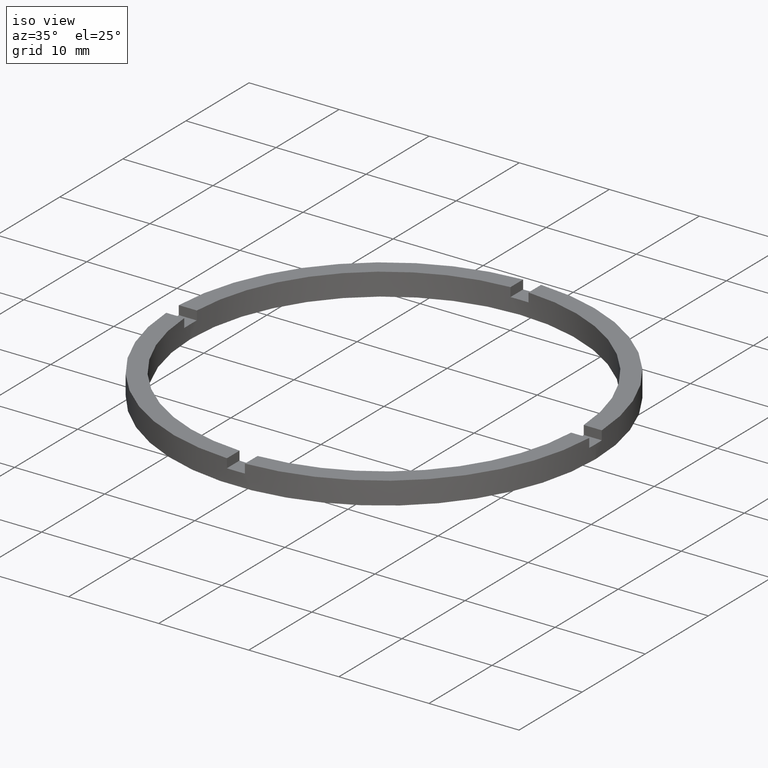
[diagram: clean part render]
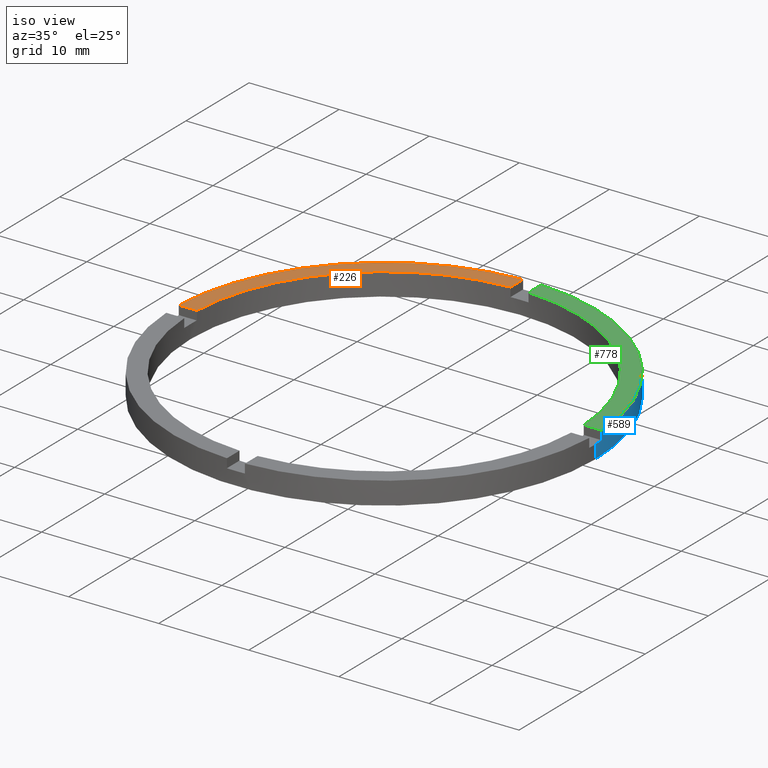
[diagram: same view with three faces highlighted in distinct colors, each labeled with its STEP entity id]
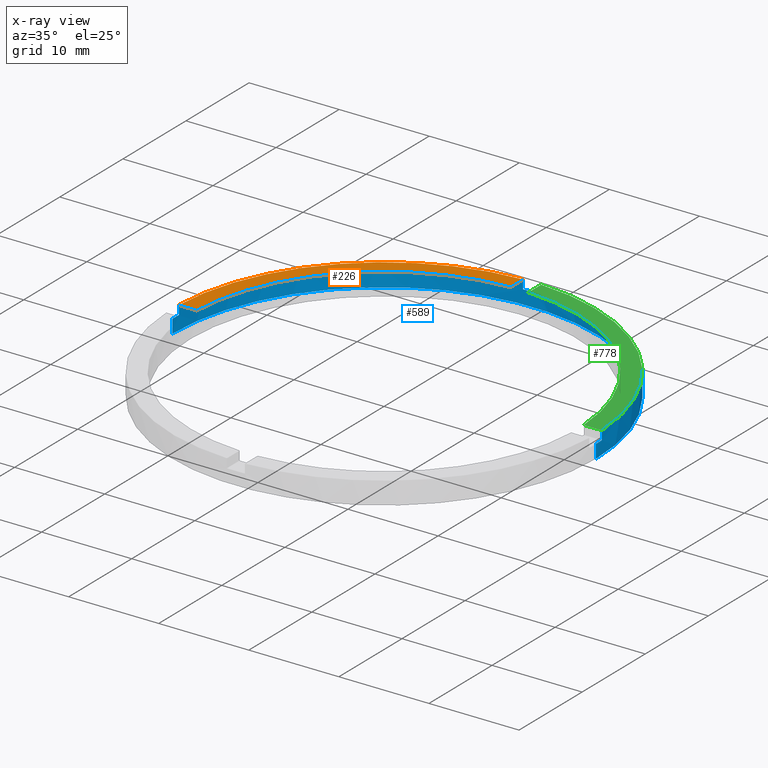
[diagram: x-ray of the same camera — body ghosted, the three highlighted faces saturated]
A machine part, iso view with three faces highlighted in distinct colors.
The next image is the same camera in x-ray (body ghosted, the three faces saturated) — at least one of them is partly hidden behind the body in this view.
Their STEP definitions:

[orange] entity #226 — the highlighted planar face has unit normal (0, 0, 1).
#3 = DIRECTION ( 'NONE',  ( 1.000000000000000000, 0.000000000000000000, 0.000000000000000000 ) ) ;
#32 = AXIS2_PLACEMENT_3D ( 'NONE', #646, #62, #603 ) ;
#45 = VERTEX_POINT ( 'NONE', #645 ) ;
#58 = AXIS2_PLACEMENT_3D ( 'NONE', #716, #376, #3 ) ;
#62 = DIRECTION ( 'NONE',  ( 0.000000000000000000, 0.000000000000000000, 1.000000000000000000 ) ) ;
#79 = CARTESIAN_POINT ( 'NONE',  ( -1.000000000000025535, 23.47871376374778762, 2.500000000000000000 ) ) ;
#94 = EDGE_CURVE ( 'NONE', #45, #548, #402, .T. ) ;
#110 = DIRECTION ( 'NONE',  ( 0.000000000000000000, 0.000000000000000000, 1.000000000000000000 ) ) ;
#163 = DIRECTION ( 'NONE',  ( -1.000000000000000000, -1.734723475976806848E-16, 0.000000000000000000 ) ) ;
#179 = FACE_OUTER_BOUND ( 'NONE', #767, .T. ) ;
#206 = CIRCLE ( 'NONE', #608, 21.50000000000000000 ) ;
#226 = ADVANCED_FACE ( 'NONE', ( #179 ), #231, .T. ) ;
#231 = PLANE ( 'NONE',  #32 ) ;
#242 = DIRECTION ( 'NONE',  ( 1.000000000000000000, 0.000000000000000000, 0.000000000000000000 ) ) ;
#252 = EDGE_CURVE ( 'NONE', #705, #548, #444, .T. ) ;
#259 = CARTESIAN_POINT ( 'NONE',  ( 0.000000000000000000, 0.000000000000000000, 2.500000000000000000 ) ) ;
#269 = ORIENTED_EDGE ( 'NONE', *, *, #770, .F. ) ;
#287 = EDGE_CURVE ( 'NONE', #705, #673, #435, .T. ) ;
#354 = CARTESIAN_POINT ( 'NONE',  ( -1.000000000000025979, 13.50000000000000355, 2.500000000000000000 ) ) ;
#376 = DIRECTION ( 'NONE',  ( 0.000000000000000000, 0.000000000000000000, 1.000000000000000000 ) ) ;
#402 = LINE ( 'NONE', #565, #674 ) ;
#405 = ORIENTED_EDGE ( 'NONE', *, *, #94, .F. ) ;
#435 = LINE ( 'NONE', #354, #451 ) ;
#444 = CIRCLE ( 'NONE', #58, 23.50000000000000355 ) ;
#451 = VECTOR ( 'NONE', #510, 1000.000000000000000 ) ;
#510 = DIRECTION ( 'NONE',  ( -0.000000000000000000, -1.000000000000000000, -0.000000000000000000 ) ) ;
#548 = VERTEX_POINT ( 'NONE', #640 ) ;
#565 = CARTESIAN_POINT ( 'NONE',  ( -13.50000000000018829, 0.9999999999999761302, 2.500000000000000000 ) ) ;
#603 = DIRECTION ( 'NONE',  ( 1.000000000000000000, 0.000000000000000000, -0.000000000000000000 ) ) ;
#608 = AXIS2_PLACEMENT_3D ( 'NONE', #259, #110, #242 ) ;
#640 = CARTESIAN_POINT ( 'NONE',  ( -23.47871376374779473, 0.9999999999999744649, 2.500000000000000000 ) ) ;
#645 = CARTESIAN_POINT ( 'NONE',  ( -21.47673159491452921, 0.9999999999999749090, 2.500000000000000000 ) ) ;
#646 = CARTESIAN_POINT ( 'NONE',  ( 0.000000000000000000, 0.000000000000000000, 2.500000000000000000 ) ) ;
#673 = VERTEX_POINT ( 'NONE', #720 ) ;
#674 = VECTOR ( 'NONE', #163, 1000.000000000000000 ) ;
#677 = ORIENTED_EDGE ( 'NONE', *, *, #287, .F. ) ;
#683 = ORIENTED_EDGE ( 'NONE', *, *, #252, .T. ) ;
#705 = VERTEX_POINT ( 'NONE', #79 ) ;
#716 = CARTESIAN_POINT ( 'NONE',  ( 0.000000000000000000, 0.000000000000000000, 2.500000000000000000 ) ) ;
#720 = CARTESIAN_POINT ( 'NONE',  ( -1.000000000000025535, 21.47673159491452211, 2.500000000000000000 ) ) ;
#767 = EDGE_LOOP ( 'NONE', ( #677, #683, #405, #269 ) ) ;
#770 = EDGE_CURVE ( 'NONE', #673, #45, #206, .T. ) ;

[blue] entity #589 — the highlighted cylindrical surface (partial cylindrical patch) has radius 23.5 mm, axis along (-0, -0, -1).
#1 = DIRECTION ( 'NONE',  ( 0.000000000000000000, 0.000000000000000000, 1.000000000000000000 ) ) ;
#3 = DIRECTION ( 'NONE',  ( 1.000000000000000000, 0.000000000000000000, 0.000000000000000000 ) ) ;
#5 = EDGE_CURVE ( 'NONE', #368, #486, #684, .T. ) ;
#30 = DIRECTION ( 'NONE',  ( 1.000000000000000000, 0.000000000000000000, 0.000000000000000000 ) ) ;
#31 = DIRECTION ( 'NONE',  ( 0.000000000000000000, 0.000000000000000000, 1.000000000000000000 ) ) ;
#33 = CARTESIAN_POINT ( 'NONE',  ( 23.47871376374779828, 0.9999999999998421263, 2.500000000000000000 ) ) ;
#53 = VERTEX_POINT ( 'NONE', #298 ) ;
#55 = CARTESIAN_POINT ( 'NONE',  ( -1.000000000000025535, 23.47871376374778762, 1.500000000000000000 ) ) ;
#57 = VERTEX_POINT ( 'NONE', #91 ) ;
#58 = AXIS2_PLACEMENT_3D ( 'NONE', #716, #376, #3 ) ;
#68 = CARTESIAN_POINT ( 'NONE',  ( -23.47871376374779473, 0.9999999999999744649, 2.500000000000000000 ) ) ;
#74 = EDGE_CURVE ( 'NONE', #560, #223, #701, .T. ) ;
#79 = CARTESIAN_POINT ( 'NONE',  ( -1.000000000000025535, 23.47871376374778762, 2.500000000000000000 ) ) ;
#85 = VERTEX_POINT ( 'NONE', #602 ) ;
#86 = DIRECTION ( 'NONE',  ( 1.000000000000000000, 0.000000000000000000, 0.000000000000000000 ) ) ;
#91 = CARTESIAN_POINT ( 'NONE',  ( -23.50000000000000355, 0.000000000000000000, 0.000000000000000000 ) ) ;
#95 = CARTESIAN_POINT ( 'NONE',  ( 23.50000000000000355, 2.877919977996280715E-15, 2.500000000000000000 ) ) ;
#105 = DIRECTION ( 'NONE',  ( 0.000000000000000000, 0.000000000000000000, 1.000000000000000000 ) ) ;
#111 = CARTESIAN_POINT ( 'NONE',  ( -23.50000000000000355, 0.000000000000000000, 1.500000000000000000 ) ) ;
#137 = CARTESIAN_POINT ( 'NONE',  ( 23.50000000000000355, 2.877919977996280715E-15, 0.000000000000000000 ) ) ;
#147 = EDGE_CURVE ( 'NONE', #705, #486, #189, .T. ) ;
#148 = ORIENTED_EDGE ( 'NONE', *, *, #74, .T. ) ;
#164 = ORIENTED_EDGE ( 'NONE', *, *, #703, .T. ) ;
#174 = VECTOR ( 'NONE', #568, 1000.000000000000000 ) ;
#185 = CIRCLE ( 'NONE', #523, 23.50000000000000355 ) ;
#187 = LINE ( 'NONE', #545, #446 ) ;
#189 = LINE ( 'NONE', #480, #479 ) ;
#219 = CIRCLE ( 'NONE', #641, 23.50000000000000355 ) ;
#223 = VERTEX_POINT ( 'NONE', #137 ) ;
#249 = DIRECTION ( 'NONE',  ( -0.000000000000000000, -0.000000000000000000, -1.000000000000000000 ) ) ;
#252 = EDGE_CURVE ( 'NONE', #705, #548, #444, .T. ) ;
#255 = AXIS2_PLACEMENT_3D ( 'NONE', #619, #576, #30 ) ;
#262 = ORIENTED_EDGE ( 'NONE', *, *, #606, .T. ) ;
#265 = ORIENTED_EDGE ( 'NONE', *, *, #5, .F. ) ;
#280 = EDGE_CURVE ( 'NONE', #625, #548, #454, .T. ) ;
#283 = AXIS2_PLACEMENT_3D ( 'NONE', #733, #622, #569 ) ;
#296 = AXIS2_PLACEMENT_3D ( 'NONE', #447, #702, #86 ) ;
#298 = CARTESIAN_POINT ( 'NONE',  ( 0.9999999999999735767, 23.47871376374779118, 2.500000000000000000 ) ) ;
#315 = CARTESIAN_POINT ( 'NONE',  ( 23.50000000000000355, 2.877919977996280715E-15, 1.500000000000000000 ) ) ;
#323 = LINE ( 'NONE', #33, #581 ) ;
#350 = DIRECTION ( 'NONE',  ( -0.000000000000000000, -0.000000000000000000, -1.000000000000000000 ) ) ;
#361 = EDGE_CURVE ( 'NONE', #668, #53, #735, .T. ) ;
#364 = CARTESIAN_POINT ( 'NONE',  ( 0.9999999999999735767, 23.47871376374779118, 1.500000000000000000 ) ) ;
#368 = VERTEX_POINT ( 'NONE', #364 ) ;
#375 = ORIENTED_EDGE ( 'NONE', *, *, #252, .F. ) ;
#376 = DIRECTION ( 'NONE',  ( 0.000000000000000000, 0.000000000000000000, 1.000000000000000000 ) ) ;
#377 = ORIENTED_EDGE ( 'NONE', *, *, #361, .F. ) ;
#390 = EDGE_LOOP ( 'NONE', ( #415, #148, #262, #706, #420, #530, #375, #682, #265, #427, #377, #164 ) ) ;
#406 = CARTESIAN_POINT ( 'NONE',  ( -23.50000000000000355, 0.000000000000000000, 2.500000000000000000 ) ) ;
#415 = ORIENTED_EDGE ( 'NONE', *, *, #614, .F. ) ;
#420 = ORIENTED_EDGE ( 'NONE', *, *, #453, .F. ) ;
#427 = ORIENTED_EDGE ( 'NONE', *, *, #521, .T. ) ;
#444 = CIRCLE ( 'NONE', #58, 23.50000000000000355 ) ;
#446 = VECTOR ( 'NONE', #31, 1000.000000000000000 ) ;
#447 = CARTESIAN_POINT ( 'NONE',  ( 0.000000000000000000, 0.000000000000000000, 2.500000000000000000 ) ) ;
#453 = EDGE_CURVE ( 'NONE', #625, #543, #185, .T. ) ;
#454 = LINE ( 'NONE', #68, #710 ) ;
#479 = VECTOR ( 'NONE', #598, 1000.000000000000000 ) ;
#480 = CARTESIAN_POINT ( 'NONE',  ( -1.000000000000025979, 23.47871376374779118, 2.500000000000000000 ) ) ;
#486 = VERTEX_POINT ( 'NONE', #55 ) ;
#487 = VECTOR ( 'NONE', #249, 1000.000000000000000 ) ;
#493 = CYLINDRICAL_SURFACE ( 'NONE', #283, 23.50000000000000355 ) ;
#496 = CIRCLE ( 'NONE', #566, 23.50000000000000355 ) ;
#499 = LINE ( 'NONE', #406, #487 ) ;
#509 = CARTESIAN_POINT ( 'NONE',  ( 0.000000000000000000, 0.000000000000000000, 0.000000000000000000 ) ) ;
#521 = EDGE_CURVE ( 'NONE', #368, #53, #187, .T. ) ;
#523 = AXIS2_PLACEMENT_3D ( 'NONE', #634, #689, #780 ) ;
#530 = ORIENTED_EDGE ( 'NONE', *, *, #280, .T. ) ;
#543 = VERTEX_POINT ( 'NONE', #111 ) ;
#545 = CARTESIAN_POINT ( 'NONE',  ( 0.9999999999999740208, 23.47871376374779473, 2.500000000000000000 ) ) ;
#548 = VERTEX_POINT ( 'NONE', #640 ) ;
#560 = VERTEX_POINT ( 'NONE', #315 ) ;
#566 = AXIS2_PLACEMENT_3D ( 'NONE', #699, #1, #659 ) ;
#568 = DIRECTION ( 'NONE',  ( -0.000000000000000000, -0.000000000000000000, -1.000000000000000000 ) ) ;
#569 = DIRECTION ( 'NONE',  ( -1.000000000000000000, 0.000000000000000000, 0.000000000000000000 ) ) ;
#572 = DIRECTION ( 'NONE',  ( 1.000000000000000000, 0.000000000000000000, 0.000000000000000000 ) ) ;
#576 = DIRECTION ( 'NONE',  ( 0.000000000000000000, -0.000000000000000000, 1.000000000000000000 ) ) ;
#581 = VECTOR ( 'NONE', #350, 1000.000000000000000 ) ;
#586 = EDGE_CURVE ( 'NONE', #543, #57, #499, .T. ) ;
#589 = ADVANCED_FACE ( 'NONE', ( #768 ), #493, .T. ) ;
#598 = DIRECTION ( 'NONE',  ( -0.000000000000000000, -0.000000000000000000, -1.000000000000000000 ) ) ;
#602 = CARTESIAN_POINT ( 'NONE',  ( 23.47871376374779828, 0.9999999999998421263, 1.500000000000000000 ) ) ;
#606 = EDGE_CURVE ( 'NONE', #223, #57, #219, .T. ) ;
#614 = EDGE_CURVE ( 'NONE', #560, #85, #496, .T. ) ;
#619 = CARTESIAN_POINT ( 'NONE',  ( 0.000000000000000000, 0.000000000000000000, 1.500000000000000000 ) ) ;
#620 = DIRECTION ( 'NONE',  ( 0.000000000000000000, 0.000000000000000000, 1.000000000000000000 ) ) ;
#622 = DIRECTION ( 'NONE',  ( -0.000000000000000000, -0.000000000000000000, -1.000000000000000000 ) ) ;
#625 = VERTEX_POINT ( 'NONE', #740 ) ;
#634 = CARTESIAN_POINT ( 'NONE',  ( 0.000000000000000000, 0.000000000000000000, 1.500000000000000000 ) ) ;
#640 = CARTESIAN_POINT ( 'NONE',  ( -23.47871376374779473, 0.9999999999999744649, 2.500000000000000000 ) ) ;
#641 = AXIS2_PLACEMENT_3D ( 'NONE', #509, #620, #572 ) ;
#647 = CARTESIAN_POINT ( 'NONE',  ( 23.47871376374779828, 0.9999999999998421263, 2.500000000000000000 ) ) ;
#659 = DIRECTION ( 'NONE',  ( 1.000000000000000000, 0.000000000000000000, 0.000000000000000000 ) ) ;
#668 = VERTEX_POINT ( 'NONE', #647 ) ;
#682 = ORIENTED_EDGE ( 'NONE', *, *, #147, .T. ) ;
#684 = CIRCLE ( 'NONE', #255, 23.50000000000000355 ) ;
#689 = DIRECTION ( 'NONE',  ( 0.000000000000000000, 0.000000000000000000, 1.000000000000000000 ) ) ;
#699 = CARTESIAN_POINT ( 'NONE',  ( 0.000000000000000000, 0.000000000000000000, 1.500000000000000000 ) ) ;
#701 = LINE ( 'NONE', #95, #174 ) ;
#702 = DIRECTION ( 'NONE',  ( 0.000000000000000000, 0.000000000000000000, 1.000000000000000000 ) ) ;
#703 = EDGE_CURVE ( 'NONE', #668, #85, #323, .T. ) ;
#705 = VERTEX_POINT ( 'NONE', #79 ) ;
#706 = ORIENTED_EDGE ( 'NONE', *, *, #586, .F. ) ;
#710 = VECTOR ( 'NONE', #105, 1000.000000000000000 ) ;
#716 = CARTESIAN_POINT ( 'NONE',  ( 0.000000000000000000, 0.000000000000000000, 2.500000000000000000 ) ) ;
#733 = CARTESIAN_POINT ( 'NONE',  ( 0.000000000000000000, 0.000000000000000000, 2.500000000000000000 ) ) ;
#735 = CIRCLE ( 'NONE', #296, 23.50000000000000355 ) ;
#740 = CARTESIAN_POINT ( 'NONE',  ( -23.47871376374779473, 0.9999999999999744649, 1.500000000000000000 ) ) ;
#768 = FACE_OUTER_BOUND ( 'NONE', #390, .T. ) ;
#780 = DIRECTION ( 'NONE',  ( 1.000000000000000000, 0.000000000000000000, 0.000000000000000000 ) ) ;

[green] entity #778 — the highlighted planar face has unit normal (0, 0, 1).
#10 = DIRECTION ( 'NONE',  ( 0.000000000000000000, 1.000000000000000000, 0.000000000000000000 ) ) ;
#23 = EDGE_CURVE ( 'NONE', #247, #522, #391, .T. ) ;
#25 = PLANE ( 'NONE',  #631 ) ;
#46 = EDGE_CURVE ( 'NONE', #522, #53, #698, .T. ) ;
#53 = VERTEX_POINT ( 'NONE', #298 ) ;
#64 = CARTESIAN_POINT ( 'NONE',  ( 0.9999999999999740208, 13.50000000000000355, 2.500000000000000000 ) ) ;
#86 = DIRECTION ( 'NONE',  ( 1.000000000000000000, 0.000000000000000000, 0.000000000000000000 ) ) ;
#134 = ORIENTED_EDGE ( 'NONE', *, *, #46, .F. ) ;
#172 = VECTOR ( 'NONE', #10, 1000.000000000000000 ) ;
#202 = LINE ( 'NONE', #230, #744 ) ;
#225 = CARTESIAN_POINT ( 'NONE',  ( 0.9999999999999735767, 21.47673159491452566, 2.500000000000000000 ) ) ;
#230 = CARTESIAN_POINT ( 'NONE',  ( 13.49999999999999822, 0.9999999999998416822, 2.500000000000000000 ) ) ;
#247 = VERTEX_POINT ( 'NONE', #704 ) ;
#254 = CARTESIAN_POINT ( 'NONE',  ( 0.000000000000000000, 0.000000000000000000, 2.500000000000000000 ) ) ;
#296 = AXIS2_PLACEMENT_3D ( 'NONE', #447, #702, #86 ) ;
#298 = CARTESIAN_POINT ( 'NONE',  ( 0.9999999999999735767, 23.47871376374779118, 2.500000000000000000 ) ) ;
#305 = DIRECTION ( 'NONE',  ( 0.000000000000000000, 0.000000000000000000, 1.000000000000000000 ) ) ;
#352 = DIRECTION ( 'NONE',  ( 1.000000000000000000, 0.000000000000000000, 0.000000000000000000 ) ) ;
#361 = EDGE_CURVE ( 'NONE', #668, #53, #735, .T. ) ;
#363 = EDGE_CURVE ( 'NONE', #668, #247, #202, .T. ) ;
#391 = CIRCLE ( 'NONE', #588, 21.50000000000000000 ) ;
#401 = CARTESIAN_POINT ( 'NONE',  ( 0.000000000000000000, 0.000000000000000000, 2.500000000000000000 ) ) ;
#447 = CARTESIAN_POINT ( 'NONE',  ( 0.000000000000000000, 0.000000000000000000, 2.500000000000000000 ) ) ;
#522 = VERTEX_POINT ( 'NONE', #225 ) ;
#540 = DIRECTION ( 'NONE',  ( -1.000000000000000000, -4.336808689942017120E-17, -0.000000000000000000 ) ) ;
#588 = AXIS2_PLACEMENT_3D ( 'NONE', #254, #305, #352 ) ;
#631 = AXIS2_PLACEMENT_3D ( 'NONE', #401, #644, #729 ) ;
#644 = DIRECTION ( 'NONE',  ( 0.000000000000000000, 0.000000000000000000, 1.000000000000000000 ) ) ;
#647 = CARTESIAN_POINT ( 'NONE',  ( 23.47871376374779828, 0.9999999999998421263, 2.500000000000000000 ) ) ;
#660 = ORIENTED_EDGE ( 'NONE', *, *, #23, .F. ) ;
#668 = VERTEX_POINT ( 'NONE', #647 ) ;
#678 = ORIENTED_EDGE ( 'NONE', *, *, #363, .F. ) ;
#688 = EDGE_LOOP ( 'NONE', ( #134, #660, #678, #691 ) ) ;
#691 = ORIENTED_EDGE ( 'NONE', *, *, #361, .T. ) ;
#698 = LINE ( 'NONE', #64, #172 ) ;
#702 = DIRECTION ( 'NONE',  ( 0.000000000000000000, 0.000000000000000000, 1.000000000000000000 ) ) ;
#704 = CARTESIAN_POINT ( 'NONE',  ( 21.47673159491453632, 0.9999999999998419042, 2.500000000000000000 ) ) ;
#729 = DIRECTION ( 'NONE',  ( 1.000000000000000000, 0.000000000000000000, -0.000000000000000000 ) ) ;
#735 = CIRCLE ( 'NONE', #296, 23.50000000000000355 ) ;
#743 = FACE_OUTER_BOUND ( 'NONE', #688, .T. ) ;
#744 = VECTOR ( 'NONE', #540, 1000.000000000000000 ) ;
#778 = ADVANCED_FACE ( 'NONE', ( #743 ), #25, .T. ) ;